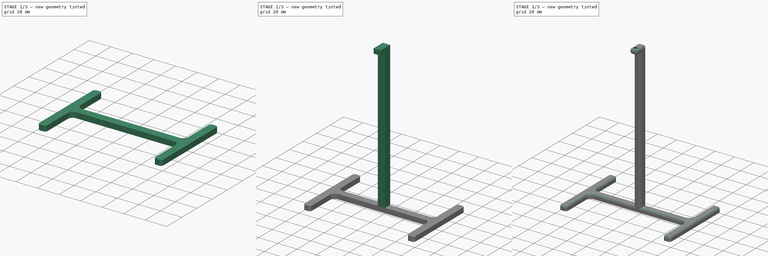
[diagram: build sequence overview — one tinted view per stage of 3, left to right]
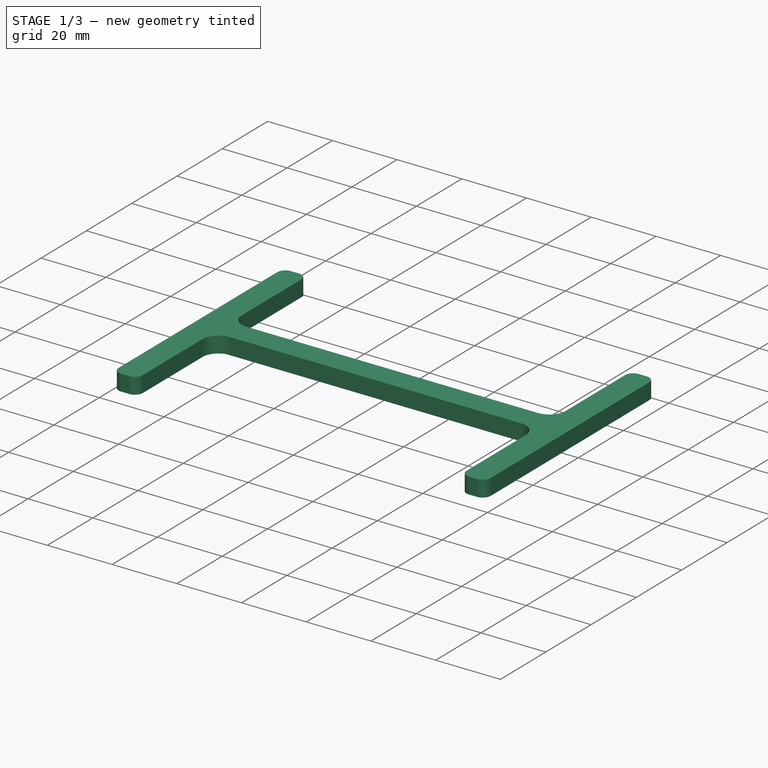
[diagram: stage 1 of 3 — iso view after this stage's code; geometry added in this stage tinted green]
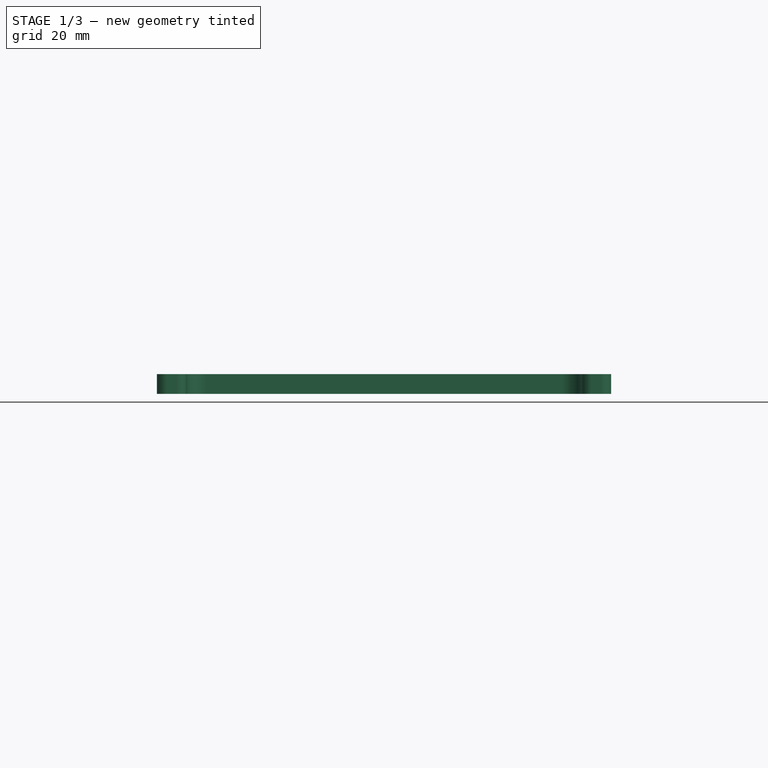
[diagram: stage 1 of 3 — front view after this stage's code; geometry added in this stage tinted green]
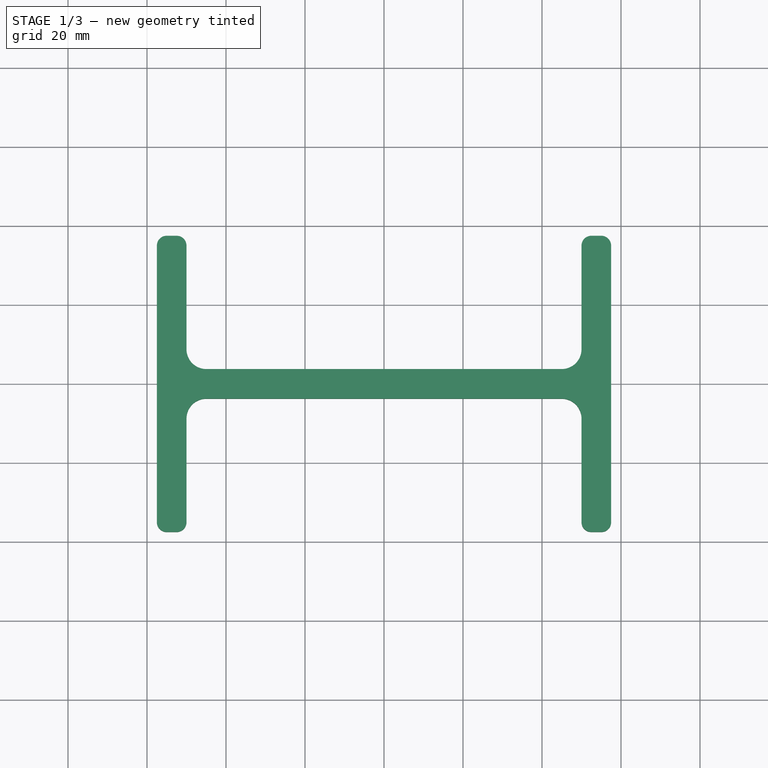
[diagram: stage 1 of 3 — top view after this stage's code; geometry added in this stage tinted green]
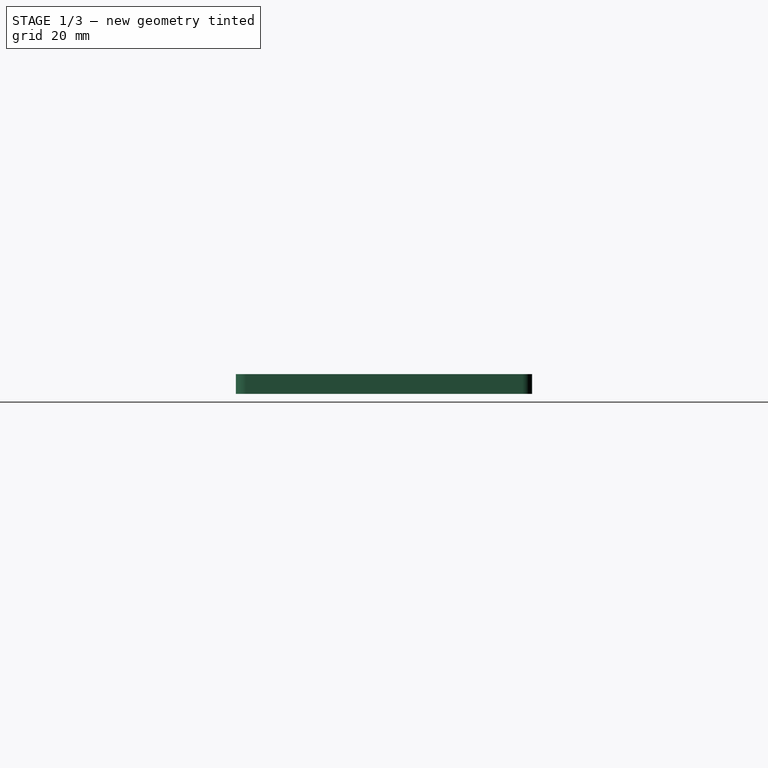
[diagram: stage 1 of 3 — right view after this stage's code; geometry added in this stage tinted green]
FCSTD DOCUMENT  (FreeCAD 1.0RUnknown)
Label: Tube Holder
License: All rights reserved
LicenseURL: https://en.wikipedia.org/wiki/All_rights_reserved
objects: Sketcher::SketchObject×4, PartDesign::Pad×3, PartDesign::Fillet×2, PartDesign::Pocket×1, PartDesign::Body×1
note: 27 computed .brp shape members not serialized (recipe doc carries the construction recipe); baked Part::Feature solids carry a one-line shape summary decoded from their .brp

FEATURE [Sketcher::SketchObject] Sketch
  ArcFitTolerance = 1e-06
  AttachmentSupport = -> [XY_Plane]
  FullyConstrained = true
  MakeInternals = false
  MapMode = 5
  sketch-geometry (31):
    g0: LineSegment StartX=-50 StartY=3.75 StartZ=0 EndX=-50 EndY=-3.75 EndZ=0
    g1: LineSegment StartX=-50 StartY=-3.75 StartZ=0 EndX=50 EndY=-3.75 EndZ=0
    g2: LineSegment StartX=50 StartY=-3.75 StartZ=0 EndX=50 EndY=3.75 EndZ=0
    g3: LineSegment StartX=50 StartY=3.75 StartZ=0 EndX=-50 EndY=3.75 EndZ=0
    g4: GeomPoint [constr] X=0 Y=0 Z=0
    g5: LineSegment StartX=50 StartY=35 StartZ=0 EndX=50 EndY=-35 EndZ=0
    g6: LineSegment StartX=52.5 StartY=-37.5 StartZ=0 EndX=55 EndY=-37.5 EndZ=0
    g7: LineSegment StartX=57.5 StartY=-35 StartZ=0 EndX=57.5 EndY=35 EndZ=0
    g8: LineSegment StartX=55 StartY=37.5 StartZ=0 EndX=52.5 EndY=37.5 EndZ=0
    g9: GeomPoint [constr] X=53.75 Y=0 Z=0
    g10: LineSegment StartX=-52.5 StartY=37.5 StartZ=0 EndX=-55 EndY=37.5 EndZ=0
    g11: LineSegment StartX=-57.5 StartY=35 StartZ=0 EndX=-57.5 EndY=-35 EndZ=0
    g12: LineSegment StartX=-55 StartY=-37.5 StartZ=0 EndX=-52.5 EndY=-37.5 EndZ=0
    g13: LineSegment StartX=-50 StartY=-35 StartZ=0 EndX=-50 EndY=35 EndZ=0
    g14: GeomPoint [constr] X=-53.75 Y=0 Z=0
    g15: ArcOfCircle CenterX=-55 CenterY=35 CenterZ=0 NormalX=0 NormalY=0 NormalZ=1 AngleXU=0 Radius=2.5 StartAngle=1.5708 EndAngle=3.14159
    g16: GeomPoint [constr] X=-57.5 Y=37.5 Z=0
    g17: ArcOfCircle CenterX=-52.5 CenterY=35 CenterZ=0 NormalX=0 NormalY=0 NormalZ=1 AngleXU=0 Radius=2.5 StartAngle=-1.8e-15 EndAngle=1.5708
    g18: GeomPoint [constr] X=-50 Y=37.5 Z=0
    g19: ArcOfCircle CenterX=-55 CenterY=-35 CenterZ=0 NormalX=0 NormalY=0 NormalZ=1 AngleXU=0 Radius=2.5 StartAngle=3.14159 EndAngle=4.71239
    g20: GeomPoint [constr] X=-57.5 Y=-37.5 Z=0
    g21: ArcOfCircle CenterX=-52.5 CenterY=-35 CenterZ=0 NormalX=0 NormalY=0 NormalZ=1 AngleXU=0 Radius=2.5 StartAngle=4.71239 EndAngle=6.28319
    g22: GeomPoint [constr] X=-50 Y=-37.5 Z=0
    g23: ArcOfCircle CenterX=52.5 CenterY=-35 CenterZ=0 NormalX=0 NormalY=0 NormalZ=1 AngleXU=0 Radius=2.5 StartAngle=3.14159 EndAngle=4.71239
    g24: GeomPoint [constr] X=50 Y=-37.5 Z=0
    g25: ArcOfCircle CenterX=55 CenterY=-35 CenterZ=0 NormalX=0 NormalY=0 NormalZ=1 AngleXU=0 Radius=2.5 StartAngle=4.71239 EndAngle=6.28319
    g26: GeomPoint [constr] X=57.5 Y=-37.5 Z=0
    g27: ArcOfCircle CenterX=52.5 CenterY=35 CenterZ=0 NormalX=0 NormalY=0 NormalZ=1 AngleXU=0 Radius=2.5 StartAngle=1.5708 EndAngle=3.14159
    g28: GeomPoint [constr] X=50 Y=37.5 Z=0
    g29: ArcOfCircle CenterX=55 CenterY=35 CenterZ=0 NormalX=0 NormalY=0 NormalZ=1 AngleXU=0 Radius=2.5 StartAngle=6e-16 EndAngle=1.5708
    g30: GeomPoint [constr] X=57.5 Y=37.5 Z=0
  constraints (67):
    c: Coincident(g0,g1)
    c: Coincident(g1,g2)
    c: Coincident(g2,g3)
    c: Coincident(g3,g0)
    c: Vertical(g0)
    c: Vertical(g2)
    c: Horizontal(g1)
    c: Horizontal(g3)
    c: Symmetric(g2,g0,g4)
    c: Coincident(g4,g-1)
    c: Vertical(g7)
    c: Horizontal(g6)
    c: Horizontal(g8)
    c: Symmetric(g26,g28,g9)
    c: PointOnObject(g9,g-1)
    c: Horizontal(g12)
    c: Vertical(g11)
    c: Symmetric(g20,g18,g14)
    c: PointOnObject(g14,g-1)
    c: Tangent(g13,g0)
    c: Tangent(g2,g5)
    c: Tangent(g8,g10)
    c: DistanceY(g20,g16) = 75
    c: Distance(g18,g16) = 7.5
    c: DistanceX(g3,g3) = 100
    c: PointOnObject(g16,g11)
    c: PointOnObject(g16,g10)
    c: Tangent(g11,g15) = -1.5708
    c: Tangent(g10,g15) = -1.5708
    c: PointOnObject(g18,g10)
    c: PointOnObject(g18,g13)
    c: Tangent(g10,g17) = -1.5708
    c: Tangent(g13,g17) = -1.5708
    c: PointOnObject(g20,g11)
    c: PointOnObject(g20,g12)
    c: Tangent(g11,g19) = -1.5708
    c: Tangent(g12,g19) = -1.5708
    c: PointOnObject(g22,g12)
    c: PointOnObject(g22,g13)
    c: Tangent(g12,g21) = -1.5708
    c: Tangent(g13,g21) = -1.5708
    c: PointOnObject(g24,g5)
    c: PointOnObject(g24,g6)
    c: Tangent(g5,g23) = -1.5708
    c: Tangent(g6,g23) = -1.5708
    c: PointOnObject(g26,g6)
    c: PointOnObject(g26,g7)
    c: Tangent(g6,g25) = -1.5708
    c: Tangent(g7,g25) = -1.5708
    c: PointOnObject(g28,g5)
    c: PointOnObject(g28,g8)
    c: Tangent(g5,g27) = -1.5708
    c: Tangent(g8,g27) = -1.5708
    c: PointOnObject(g30,g8)
    c: PointOnObject(g30,g7)
    c: Tangent(g8,g29) = -1.5708
    c: Tangent(g7,g29) = -1.5708
    c: Equal(g15,g17)
    c: Equal(g15,g21)
    c: Equal(g15,g19)
    c: Equal(g15,g25)
    c: Equal(g15,g23)
    c: Equal(g15,g29)
    c: Equal(g15,g27)
    c: Diameter(g15) = 5
    c: Distance(g0,g0) = 7.5
    c: Distance(g7,g5) = 7.5
FEATURE [PartDesign::Pad] Pad
  Direction = (0,0,1)
  Length = 5
  Length2 = 10
  Profile = -> Sketch
  ReferenceAxis = -> Sketch [N_Axis]
  Refine = true
  Suppressed = false
  Type = 0
FEATURE [PartDesign::Fillet] Fillet
  Base = -> Pad [Edge26,Edge27,Edge2,Edge1]
  BaseFeature = -> Pad
  Radius = 5
  Refine = true
  SupportTransform = false
  Suppressed = false
  UseAllEdges = false
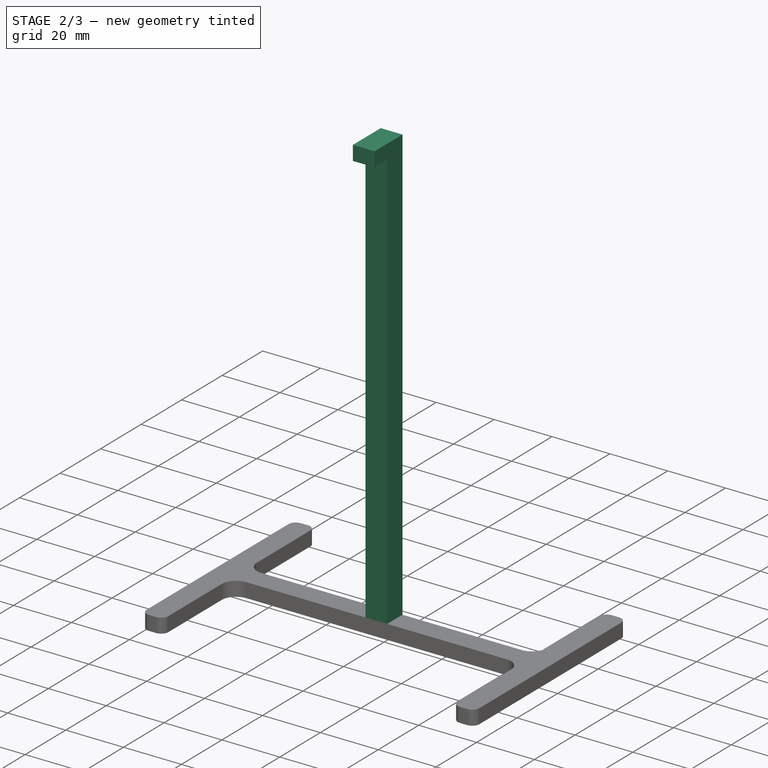
[diagram: stage 2 of 3 — iso view after this stage's code; geometry added in this stage tinted green]
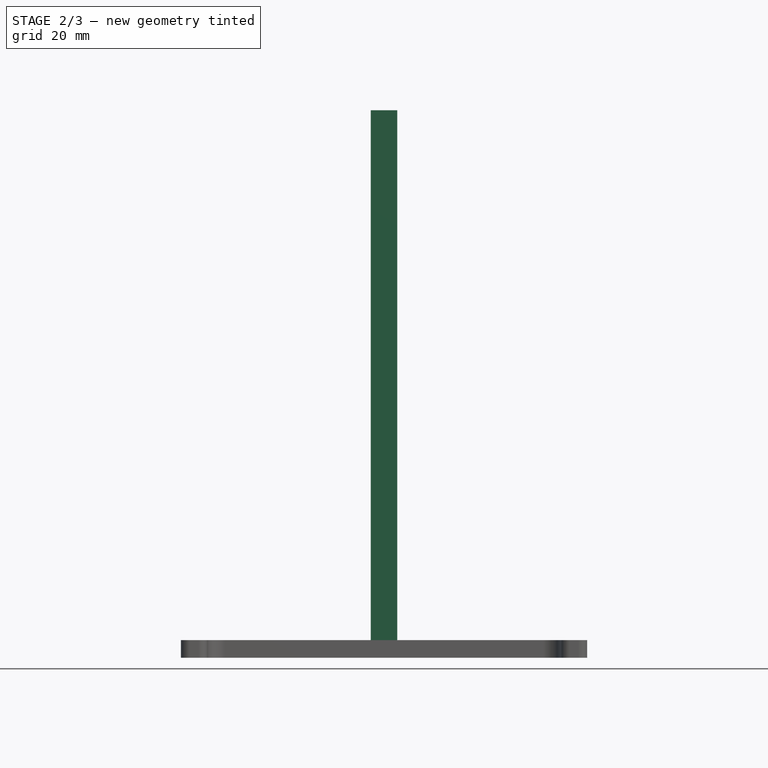
[diagram: stage 2 of 3 — front view after this stage's code; geometry added in this stage tinted green]
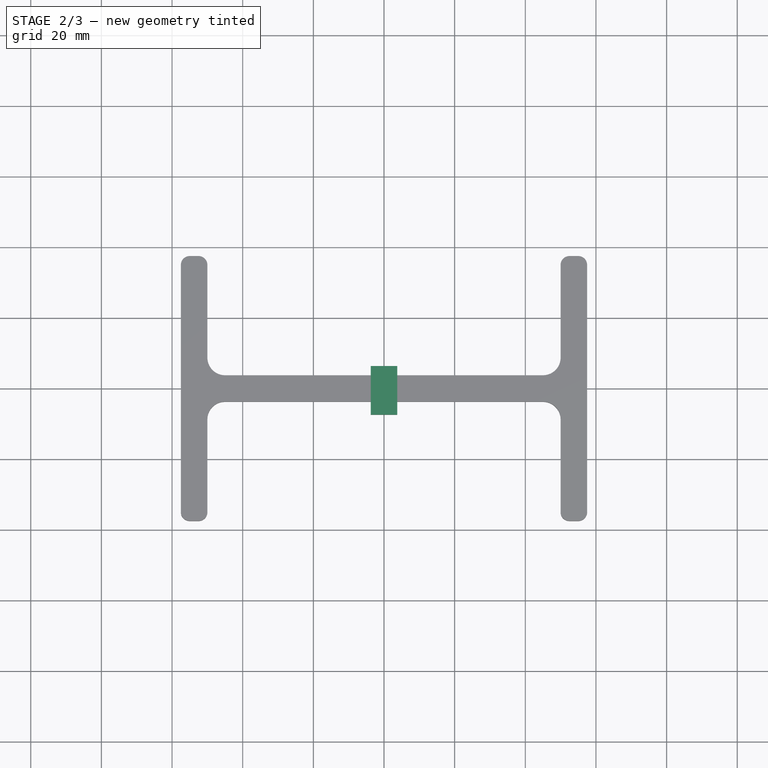
[diagram: stage 2 of 3 — top view after this stage's code; geometry added in this stage tinted green]
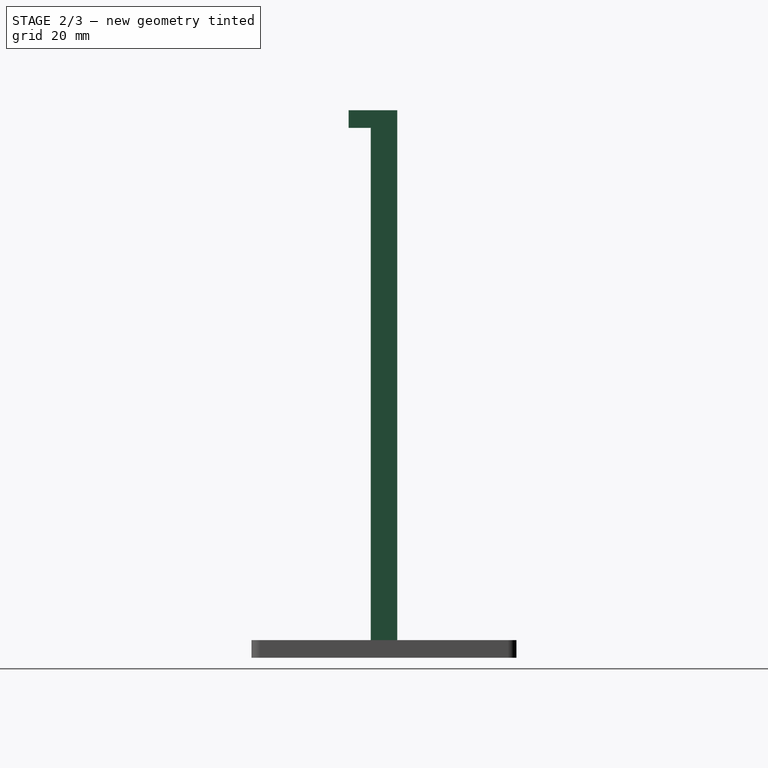
[diagram: stage 2 of 3 — right view after this stage's code; geometry added in this stage tinted green]
FEATURE [Sketcher::SketchObject] Sketch001
  ArcFitTolerance = 1e-06
  AttachmentSupport = -> [Fillet]
  ExternalGeometry = -> [Fillet]
  FullyConstrained = true
  MakeInternals = false
  MapMode = 5
  Placement = pos=(0,0,5) rot=(0,0,1;0rad)
  sketch-geometry (5):
    g0: LineSegment StartX=3.75 StartY=3.75 StartZ=0 EndX=-3.75 EndY=3.75 EndZ=0
    g1: LineSegment StartX=-3.75 StartY=3.75 StartZ=0 EndX=-3.75 EndY=-3.75 EndZ=0
    g2: LineSegment StartX=-3.75 StartY=-3.75 StartZ=0 EndX=3.75 EndY=-3.75 EndZ=0
    g3: LineSegment StartX=3.75 StartY=-3.75 StartZ=0 EndX=3.75 EndY=3.75 EndZ=0
    g4: GeomPoint [constr] X=0 Y=0 Z=0
  constraints (12):
    c: Coincident(g0,g1)
    c: Coincident(g1,g2)
    c: Coincident(g2,g3)
    c: Coincident(g3,g0)
    c: Horizontal(g0)
    c: Horizontal(g2)
    c: Vertical(g1)
    c: Vertical(g3)
    c: Symmetric(g2,g0,g4)
    c: Coincident(g4,g-1)
    c: PointOnObject(g1,g-3)
    c: Equal(g2,g1)
FEATURE [PartDesign::Pad] Pad001
  BaseFeature = -> Fillet
  Direction = (0,0,1)
  Length = 150
  Length2 = 10
  Profile = -> Sketch001
  ReferenceAxis = -> Sketch001 [N_Axis]
  Refine = true
  Suppressed = false
  Type = 0
FEATURE [Sketcher::SketchObject] Sketch002
  ArcFitTolerance = 1e-06
  AttachmentSupport = -> [XZ_Plane]
  FullyConstrained = true
  MakeInternals = false
  MapMode = 5
  Placement = pos=(0,0,0) rot=(1,0,0;1.5708rad)
  sketch-geometry (5):
    g0: LineSegment StartX=-3.75 StartY=155 StartZ=0 EndX=-3.75 EndY=150 EndZ=0
    g1: LineSegment StartX=-3.75 StartY=150 StartZ=0 EndX=3.75 EndY=150 EndZ=0
    g2: LineSegment StartX=3.75 StartY=150 StartZ=0 EndX=3.75 EndY=155 EndZ=0
    g3: LineSegment StartX=3.75 StartY=155 StartZ=0 EndX=-3.75 EndY=155 EndZ=0
    g4: GeomPoint [constr] X=6.6e-15 Y=152.5 Z=0
  constraints (11):
    c: Coincident(g0,g1)
    c: Coincident(g1,g2)
    c: Coincident(g2,g3)
    c: Coincident(g3,g0)
    c: Vertical(g0)
    c: Vertical(g2)
    c: Horizontal(g1)
    c: Symmetric(g2,g0,g4)
    c: Coincident(g-3,g2)
    c: Coincident(g0,g-3)
    c: DistanceY(g2,g2) = 5
FEATURE [PartDesign::Pad] Pad002
  BaseFeature = -> Pad001
  Direction = (0,-1,2e-16)
  Length = 10
  Length2 = 10
  Profile = -> Sketch002
  ReferenceAxis = -> Sketch002 [N_Axis]
  Refine = true
  Suppressed = false
  Type = 0
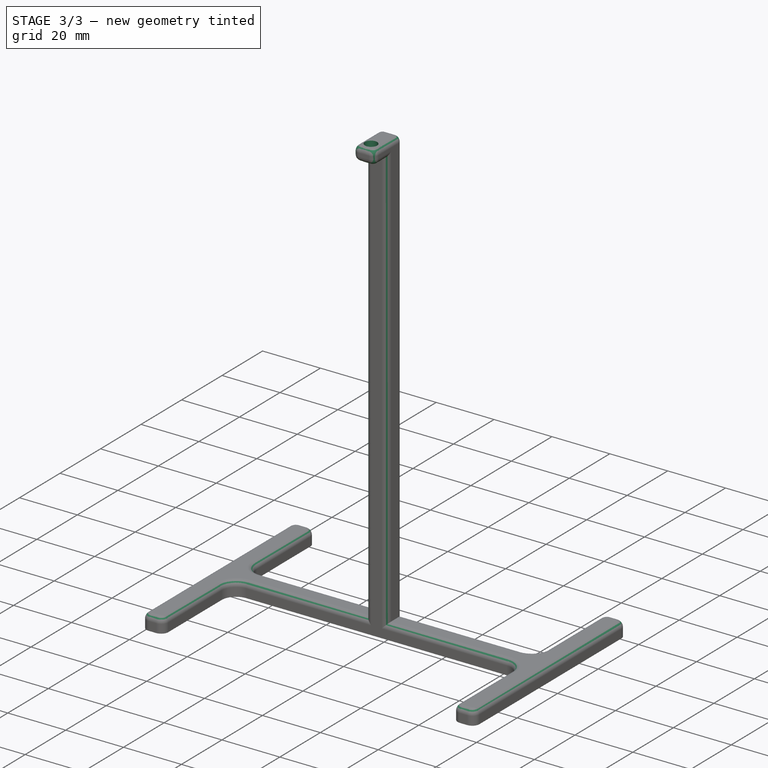
[diagram: stage 3 of 3 — iso view after this stage's code; geometry added in this stage tinted green]
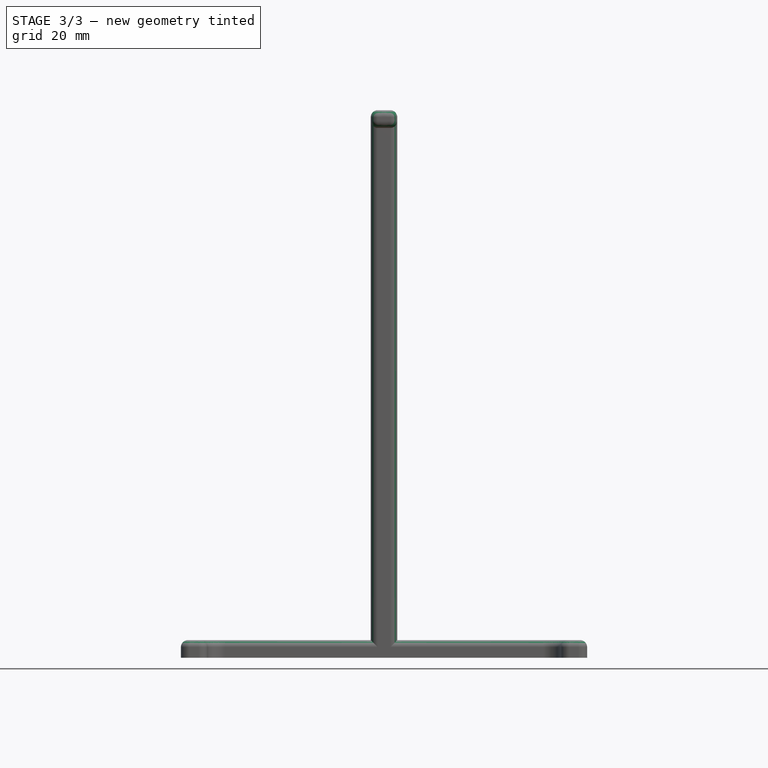
[diagram: stage 3 of 3 — front view after this stage's code; geometry added in this stage tinted green]
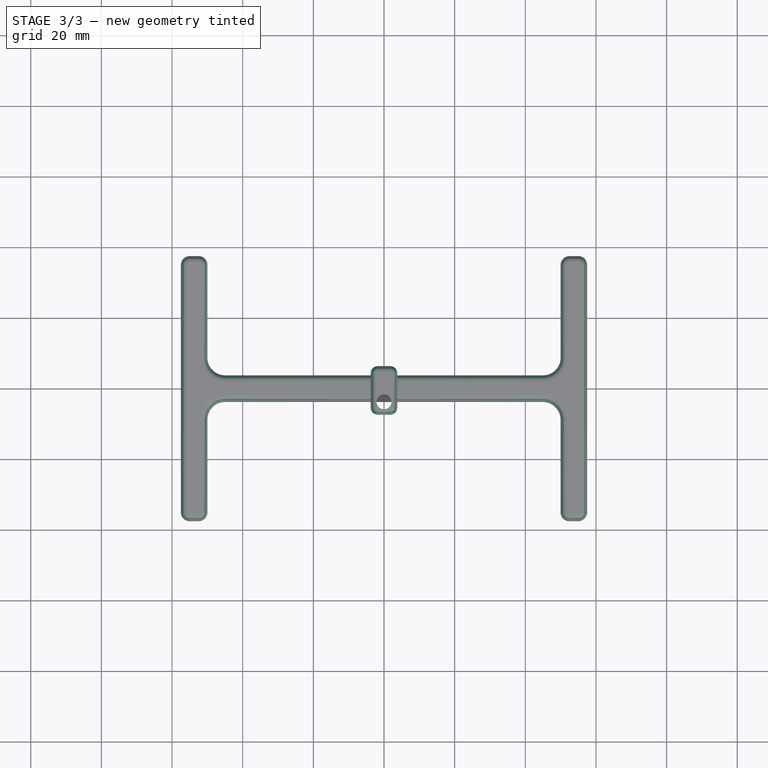
[diagram: stage 3 of 3 — top view after this stage's code; geometry added in this stage tinted green]
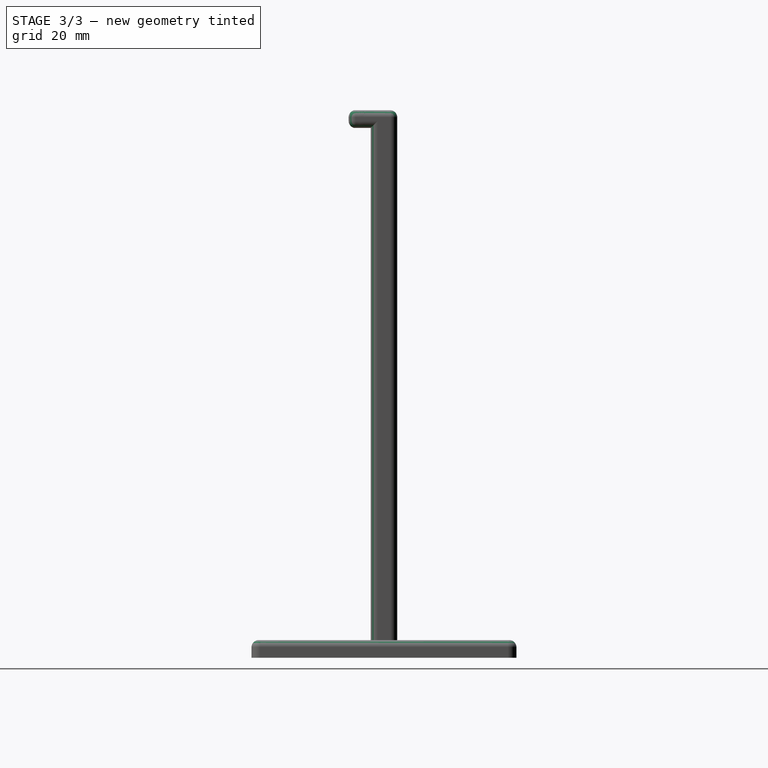
[diagram: stage 3 of 3 — right view after this stage's code; geometry added in this stage tinted green]
FEATURE [Sketcher::SketchObject] Sketch003
  ArcFitTolerance = 1e-06
  AttachmentSupport = -> [Pad002]
  ExternalGeometry = -> [Pad002]
  FullyConstrained = true
  MakeInternals = false
  MapMode = 5
  Placement = pos=(0,0,155) rot=(0,0,1;0rad)
  sketch-geometry (1):
    g0: Circle CenterX=0 CenterY=-6.4 CenterZ=0 NormalX=0 NormalY=0 NormalZ=1 AngleXU=0 Radius=2.1
  constraints (3):
    c: Diameter(g0) = 4.2
    c: PointOnObject(g0,g-2)
    c: Distance(g0,g-3) = 1.5
FEATURE [PartDesign::Pocket] Pocket
  BaseFeature = -> Pad002
  Direction = (0,0,-1)
  Length = 5
  Length2 = 5
  Profile = -> Sketch003
  ReferenceAxis = -> Sketch003 [N_Axis]
  Refine = true
  Suppressed = false
  Type = 0
FEATURE [PartDesign::Fillet] Fillet001
  Base = -> Pocket [Edge37,Edge27,Edge30,Edge29,Edge77,Edge79,Edge91,Edge89,Edge84,Edge78,Edge85,Edge90,Edge86,Edge83,Edge82]
  BaseFeature = -> Pocket
  Radius = 2
  Refine = true
  SupportTransform = false
  Suppressed = false
  UseAllEdges = false
FEATURE [PartDesign::Body] Body
  AllowCompound = false
  Group = -> [Sketch,Pad,Fillet,Sketch001,Pad001,Sketch002,Pad002,Sketch003,Pocket,Fillet001]
  Origin = -> Origin
  Tip = -> Fillet001
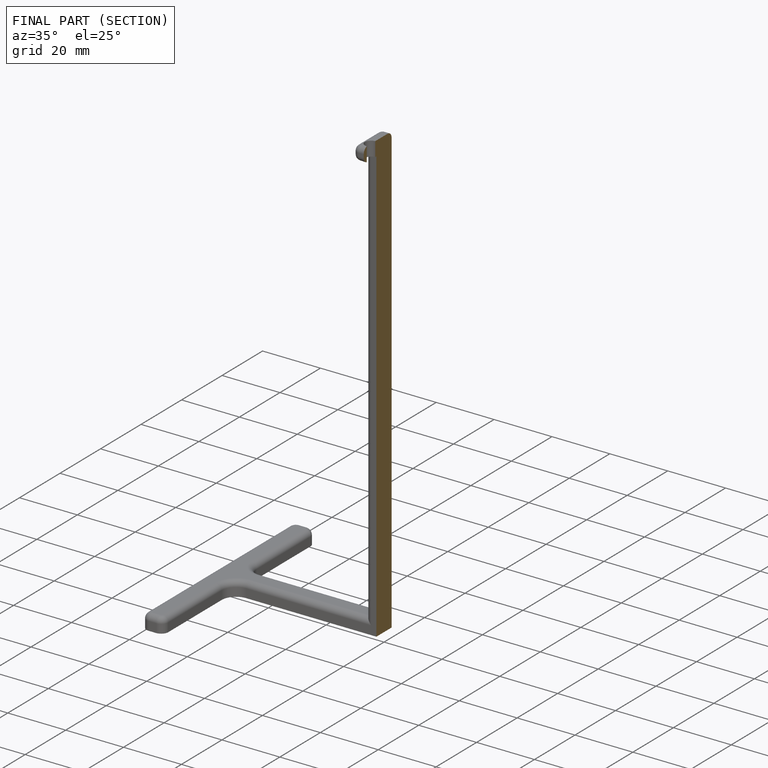
[diagram: finished part — half-section view (interior)]
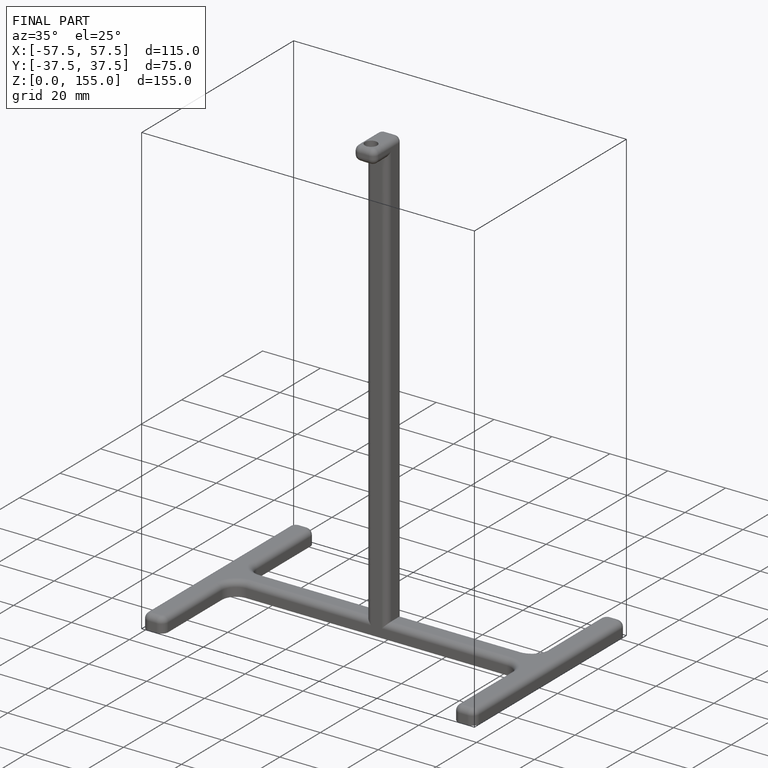
[diagram: finished part — iso view with bounding-box wireframe]
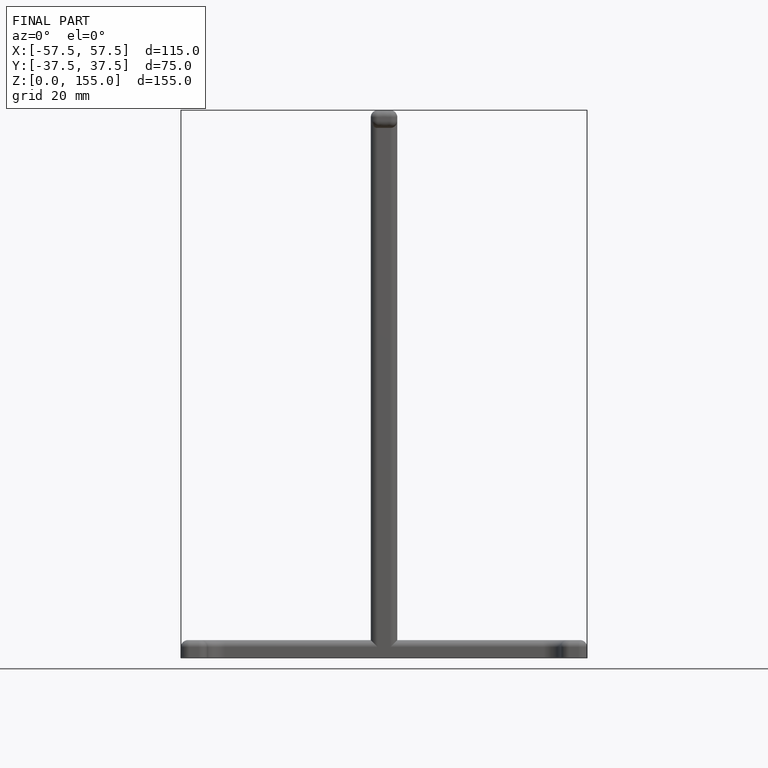
[diagram: finished part — front view with bounding-box wireframe]
